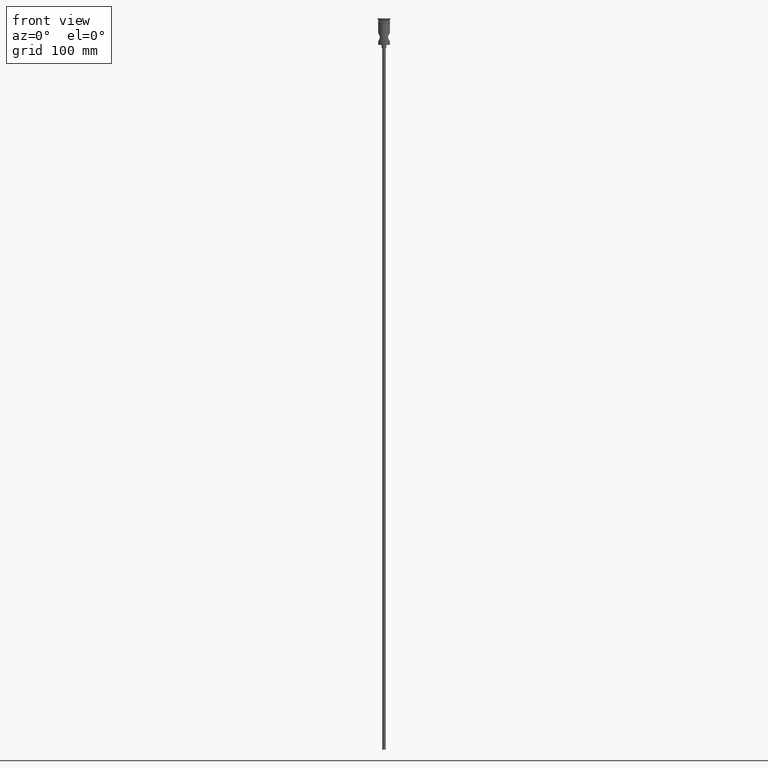
[diagram: clean part render]
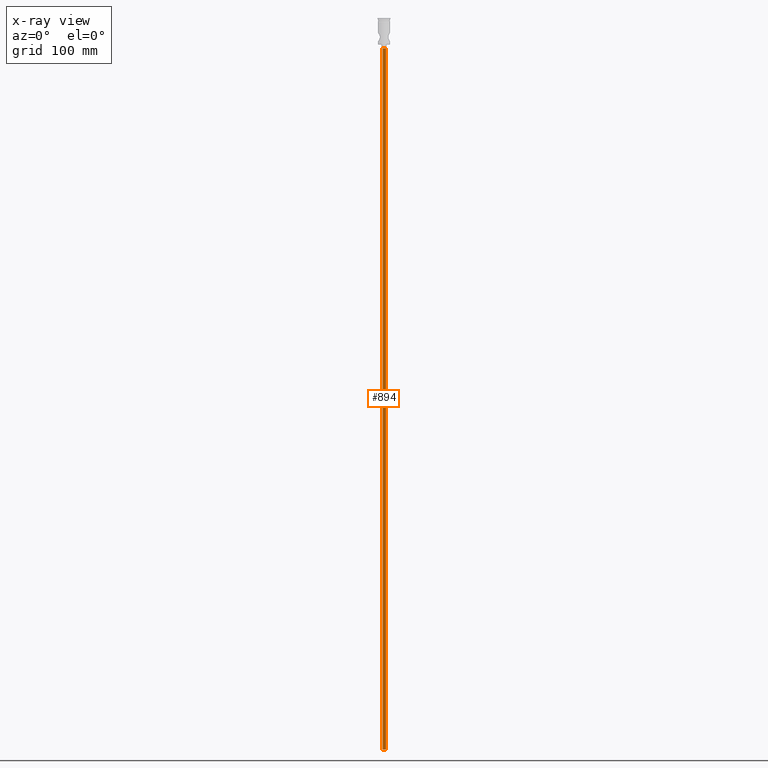
[diagram: x-ray — body ghosted, one internal face saturated and labeled with its STEP entity id]
A machine part, front view, then the same camera in x-ray: the body is ghosted and one INTERNAL B-rep face — a face not visible from any outside direction — is saturated and labeled: STEP entity #894.
In plain terms, the highlighted cylindrical surface (edge-blend (fillet) strip) has radius 1.5 mm, axis along (-0, -0, 1).
Its self-contained STEP definition (entity closure, byte-faithful):
#5 = AXIS2_PLACEMENT_3D ( 'NONE', #958, #624, #967 ) ;
#23 = DIRECTION ( 'NONE',  ( -1.000000000000000000, 0.000000000000000000, 0.000000000000000000 ) ) ;
#52 = LINE ( 'NONE', #823, #1147 ) ;
#81 = DIRECTION ( 'NONE',  ( 0.000000000000000000, 0.000000000000000000, -1.000000000000000000 ) ) ;
#137 = EDGE_CURVE ( 'NONE', #978, #602, #52, .T. ) ;
#282 = VECTOR ( 'NONE', #335, 1000.000000000000000 ) ;
#303 = CARTESIAN_POINT ( 'NONE',  ( 0.000000000000000000, 0.000000000000000000, -25.50000000000000000 ) ) ;
#329 = EDGE_CURVE ( 'NONE', #838, #1338, #439, .T. ) ;
#335 = DIRECTION ( 'NONE',  ( -0.000000000000000000, -0.000000000000000000, 1.000000000000000000 ) ) ;
#387 = ORIENTED_EDGE ( 'NONE', *, *, #765, .T. ) ;
#435 = EDGE_LOOP ( 'NONE', ( #760, #1323, #387, #1059 ) ) ;
#439 = LINE ( 'NONE', #575, #282 ) ;
#456 = CARTESIAN_POINT ( 'NONE',  ( -1.500000000000000222, 1.836970198721030181E-16, -622.4999999999998863 ) ) ;
#519 = CIRCLE ( 'NONE', #652, 1.500000000000000222 ) ;
#575 = CARTESIAN_POINT ( 'NONE',  ( 1.500000000000000222, 0.000000000000000000, -622.4999999999998863 ) ) ;
#602 = VERTEX_POINT ( 'NONE', #655 ) ;
#619 = FACE_OUTER_BOUND ( 'NONE', #435, .T. ) ;
#624 = DIRECTION ( 'NONE',  ( -0.000000000000000000, -0.000000000000000000, 1.000000000000000000 ) ) ;
#652 = AXIS2_PLACEMENT_3D ( 'NONE', #1271, #1247, #23 ) ;
#655 = CARTESIAN_POINT ( 'NONE',  ( -1.500000000000000222, 1.836970198721030181E-16, -25.50000000000000000 ) ) ;
#741 = CARTESIAN_POINT ( 'NONE',  ( 1.500000000000000222, 0.000000000000000000, -622.4999999999998863 ) ) ;
#760 = ORIENTED_EDGE ( 'NONE', *, *, #1123, .F. ) ;
#765 = EDGE_CURVE ( 'NONE', #602, #1338, #792, .T. ) ;
#792 = CIRCLE ( 'NONE', #1298, 1.500000000000000222 ) ;
#823 = CARTESIAN_POINT ( 'NONE',  ( -1.500000000000000222, 1.836970198721030181E-16, -622.4999999999998863 ) ) ;
#838 = VERTEX_POINT ( 'NONE', #741 ) ;
#868 = CARTESIAN_POINT ( 'NONE',  ( 1.500000000000000222, 0.000000000000000000, -25.50000000000000000 ) ) ;
#894 = ADVANCED_FACE ( 'NONE', ( #619 ), #1084, .T. ) ;
#958 = CARTESIAN_POINT ( 'NONE',  ( 0.000000000000000000, 0.000000000000000000, -622.4999999999998863 ) ) ;
#967 = DIRECTION ( 'NONE',  ( 1.000000000000000000, 0.000000000000000000, 0.000000000000000000 ) ) ;
#978 = VERTEX_POINT ( 'NONE', #456 ) ;
#1059 = ORIENTED_EDGE ( 'NONE', *, *, #329, .F. ) ;
#1064 = DIRECTION ( 'NONE',  ( -1.000000000000000000, 0.000000000000000000, 0.000000000000000000 ) ) ;
#1084 = CYLINDRICAL_SURFACE ( 'NONE', #5, 1.500000000000000222 ) ;
#1123 = EDGE_CURVE ( 'NONE', #978, #838, #519, .T. ) ;
#1146 = DIRECTION ( 'NONE',  ( -0.000000000000000000, -0.000000000000000000, 1.000000000000000000 ) ) ;
#1147 = VECTOR ( 'NONE', #1146, 1000.000000000000000 ) ;
#1247 = DIRECTION ( 'NONE',  ( 0.000000000000000000, 0.000000000000000000, -1.000000000000000000 ) ) ;
#1271 = CARTESIAN_POINT ( 'NONE',  ( 0.000000000000000000, 0.000000000000000000, -622.4999999999998863 ) ) ;
#1298 = AXIS2_PLACEMENT_3D ( 'NONE', #303, #81, #1064 ) ;
#1323 = ORIENTED_EDGE ( 'NONE', *, *, #137, .T. ) ;
#1338 = VERTEX_POINT ( 'NONE', #868 ) ;